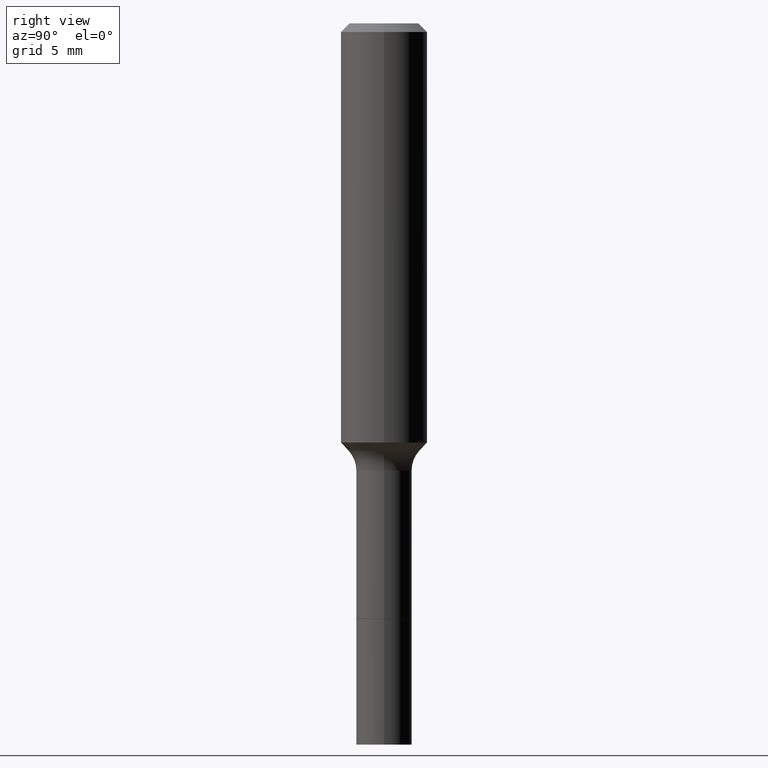
[diagram: clean part render]
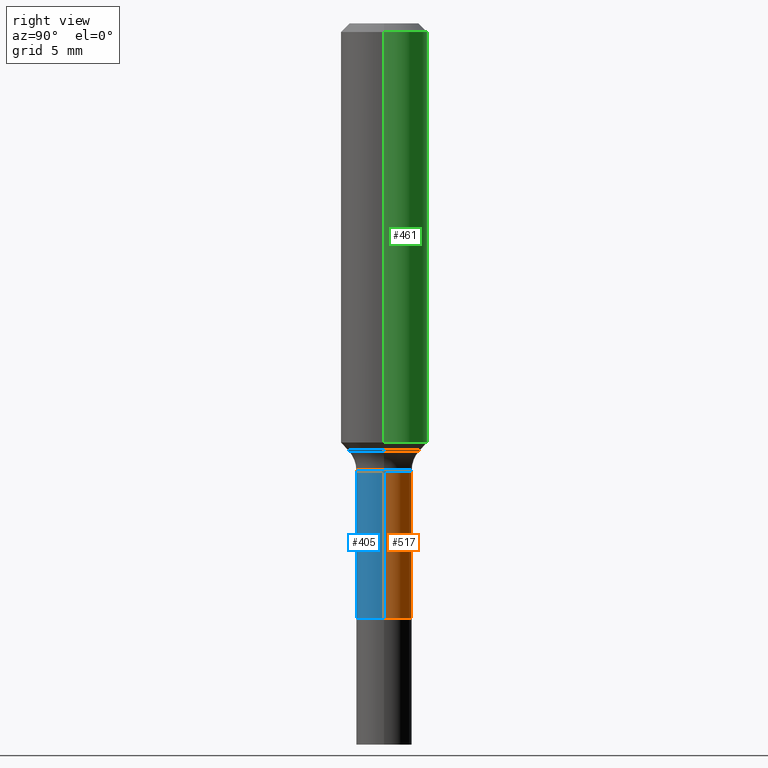
[diagram: same view with three faces highlighted in distinct colors, each labeled with its STEP entity id]
A machine part, right view with three faces highlighted in distinct colors.
Their STEP definitions:

[orange] entity #517 — the highlighted cylindrical surface (edge-blend (fillet) strip) has radius 1.9304 mm, axis along (-0, 0, 1).
#15 = DIRECTION ( 'NONE',  ( -2.445468806185136877E-29, 3.491481338843145188E-15, 1.000000000000000000 ) ) ;
#18 = DIRECTION ( 'NONE',  ( -2.445468806185136597E-29, 3.491481338843145583E-15, 1.000000000000000000 ) ) ;
#22 = CIRCLE ( 'NONE', #164, 0.07599999999999994260 ) ;
#46 = AXIS2_PLACEMENT_3D ( 'NONE', #248, #409, #200 ) ;
#49 = VECTOR ( 'NONE', #15, 39.37007874015748143 ) ;
#71 = VERTEX_POINT ( 'NONE', #502 ) ;
#92 = ORIENTED_EDGE ( 'NONE', *, *, #499, .F. ) ;
#95 = VECTOR ( 'NONE', #195, 39.37007874015748143 ) ;
#96 = LINE ( 'NONE', #456, #49 ) ;
#115 = CARTESIAN_POINT ( 'NONE',  ( 0.07599999999999999811, -6.204362339124268230E-15, -1.625000000000000000 ) ) ;
#118 = CARTESIAN_POINT ( 'NONE',  ( -0.07600000000000001199, -4.427492595661410183E-15, -1.625000000000000000 ) ) ;
#132 = CIRCLE ( 'NONE', #46, 0.07599999999999999811 ) ;
#144 = EDGE_CURVE ( 'NONE', #485, #71, #22, .T. ) ;
#164 = AXIS2_PLACEMENT_3D ( 'NONE', #209, #371, #290 ) ;
#165 = EDGE_LOOP ( 'NONE', ( #189, #286, #372, #92 ) ) ;
#179 = CARTESIAN_POINT ( 'NONE',  ( 0.07599999999999994260, -4.792058137562214256E-15, -1.220499999999999918 ) ) ;
#189 = ORIENTED_EDGE ( 'NONE', *, *, #374, .T. ) ;
#195 = DIRECTION ( 'NONE',  ( -2.445468806185136877E-29, 3.491481338843145188E-15, 1.000000000000000000 ) ) ;
#200 = DIRECTION ( 'NONE',  ( 1.000000000000000000, -6.982962677686269077E-15, 0.000000000000000000 ) ) ;
#209 = CARTESIAN_POINT ( 'NONE',  ( 2.984694677948959472E-29, -4.261352974058059028E-15, -1.220499999999999918 ) ) ;
#248 = CARTESIAN_POINT ( 'NONE',  ( 3.973886810050846970E-29, -5.673657175620112213E-15, -1.625000000000000000 ) ) ;
#262 = DIRECTION ( 'NONE',  ( 1.000000000000000000, -6.982962677686267499E-15, 4.876176775795935793E-29 ) ) ;
#286 = ORIENTED_EDGE ( 'NONE', *, *, #441, .T. ) ;
#289 = VERTEX_POINT ( 'NONE', #118 ) ;
#290 = DIRECTION ( 'NONE',  ( 1.000000000000000000, -6.982962677686261189E-15, 0.000000000000000000 ) ) ;
#339 = CARTESIAN_POINT ( 'NONE',  ( 0.000000000000000000, 0.000000000000000000, 0.000000000000000000 ) ) ;
#371 = DIRECTION ( 'NONE',  ( -2.445468806185136597E-29, 3.491481338843145583E-15, 1.000000000000000000 ) ) ;
#372 = ORIENTED_EDGE ( 'NONE', *, *, #144, .F. ) ;
#374 = EDGE_CURVE ( 'NONE', #423, #289, #132, .T. ) ;
#377 = CYLINDRICAL_SURFACE ( 'NONE', #416, 0.07599999999999997036 ) ;
#392 = CARTESIAN_POINT ( 'NONE',  ( -0.07599999999999997036, 5.400124791776759306E-16, -3.738390668593726595E-30 ) ) ;
#409 = DIRECTION ( 'NONE',  ( -2.445468806185136597E-29, 3.491481338843145583E-15, 1.000000000000000000 ) ) ;
#416 = AXIS2_PLACEMENT_3D ( 'NONE', #339, #18, #262 ) ;
#420 = FACE_OUTER_BOUND ( 'NONE', #165, .T. ) ;
#423 = VERTEX_POINT ( 'NONE', #115 ) ;
#437 = LINE ( 'NONE', #392, #95 ) ;
#441 = EDGE_CURVE ( 'NONE', #289, #71, #437, .T. ) ;
#456 = CARTESIAN_POINT ( 'NONE',  ( 0.07599999999999997036, -5.307051635041561162E-16, 3.705894349604909549E-30 ) ) ;
#485 = VERTEX_POINT ( 'NONE', #179 ) ;
#499 = EDGE_CURVE ( 'NONE', #423, #485, #96, .T. ) ;
#502 = CARTESIAN_POINT ( 'NONE',  ( -0.07599999999999994260, -4.427492595661410183E-15, -1.220499999999999918 ) ) ;
#517 = ADVANCED_FACE ( 'NONE', ( #420 ), #377, .T. ) ;

[blue] entity #405 — the highlighted cylindrical surface (edge-blend (fillet) strip) has radius 1.9304 mm, axis along (-0, 0, 1).
#15 = DIRECTION ( 'NONE',  ( -2.445468806185136877E-29, 3.491481338843145188E-15, 1.000000000000000000 ) ) ;
#49 = VECTOR ( 'NONE', #15, 39.37007874015748143 ) ;
#71 = VERTEX_POINT ( 'NONE', #502 ) ;
#95 = VECTOR ( 'NONE', #195, 39.37007874015748143 ) ;
#96 = LINE ( 'NONE', #456, #49 ) ;
#108 = EDGE_CURVE ( 'NONE', #71, #485, #184, .T. ) ;
#115 = CARTESIAN_POINT ( 'NONE',  ( 0.07599999999999999811, -6.204362339124268230E-15, -1.625000000000000000 ) ) ;
#118 = CARTESIAN_POINT ( 'NONE',  ( -0.07600000000000001199, -4.427492595661410183E-15, -1.625000000000000000 ) ) ;
#128 = DIRECTION ( 'NONE',  ( -2.445468806185136597E-29, 3.491481338843145583E-15, 1.000000000000000000 ) ) ;
#179 = CARTESIAN_POINT ( 'NONE',  ( 0.07599999999999994260, -4.792058137562214256E-15, -1.220499999999999918 ) ) ;
#184 = CIRCLE ( 'NONE', #475, 0.07599999999999994260 ) ;
#195 = DIRECTION ( 'NONE',  ( -2.445468806185136877E-29, 3.491481338843145188E-15, 1.000000000000000000 ) ) ;
#203 = CARTESIAN_POINT ( 'NONE',  ( 3.973886810050846970E-29, -5.673657175620112213E-15, -1.625000000000000000 ) ) ;
#249 = ORIENTED_EDGE ( 'NONE', *, *, #499, .T. ) ;
#252 = EDGE_CURVE ( 'NONE', #289, #423, #492, .T. ) ;
#261 = CARTESIAN_POINT ( 'NONE',  ( 2.984694677948959472E-29, -4.261352974058059028E-15, -1.220499999999999918 ) ) ;
#289 = VERTEX_POINT ( 'NONE', #118 ) ;
#311 = EDGE_LOOP ( 'NONE', ( #375, #473, #249, #421 ) ) ;
#319 = DIRECTION ( 'NONE',  ( -2.445468806185136597E-29, 3.491481338843145583E-15, 1.000000000000000000 ) ) ;
#354 = DIRECTION ( 'NONE',  ( 1.000000000000000000, -6.982962677686269077E-15, 0.000000000000000000 ) ) ;
#366 = AXIS2_PLACEMENT_3D ( 'NONE', #433, #319, #489 ) ;
#375 = ORIENTED_EDGE ( 'NONE', *, *, #441, .F. ) ;
#392 = CARTESIAN_POINT ( 'NONE',  ( -0.07599999999999997036, 5.400124791776759306E-16, -3.738390668593726595E-30 ) ) ;
#405 = ADVANCED_FACE ( 'NONE', ( #511 ), #469, .T. ) ;
#421 = ORIENTED_EDGE ( 'NONE', *, *, #108, .F. ) ;
#423 = VERTEX_POINT ( 'NONE', #115 ) ;
#426 = DIRECTION ( 'NONE',  ( 1.000000000000000000, -6.982962677686261189E-15, 0.000000000000000000 ) ) ;
#433 = CARTESIAN_POINT ( 'NONE',  ( 0.000000000000000000, 0.000000000000000000, 0.000000000000000000 ) ) ;
#437 = LINE ( 'NONE', #392, #95 ) ;
#441 = EDGE_CURVE ( 'NONE', #289, #71, #437, .T. ) ;
#456 = CARTESIAN_POINT ( 'NONE',  ( 0.07599999999999997036, -5.307051635041561162E-16, 3.705894349604909549E-30 ) ) ;
#469 = CYLINDRICAL_SURFACE ( 'NONE', #366, 0.07599999999999997036 ) ;
#473 = ORIENTED_EDGE ( 'NONE', *, *, #252, .T. ) ;
#475 = AXIS2_PLACEMENT_3D ( 'NONE', #261, #497, #426 ) ;
#485 = VERTEX_POINT ( 'NONE', #179 ) ;
#486 = AXIS2_PLACEMENT_3D ( 'NONE', #203, #128, #354 ) ;
#489 = DIRECTION ( 'NONE',  ( 1.000000000000000000, -6.982962677686267499E-15, 4.876176775795935793E-29 ) ) ;
#492 = CIRCLE ( 'NONE', #486, 0.07599999999999999811 ) ;
#497 = DIRECTION ( 'NONE',  ( -2.445468806185136597E-29, 3.491481338843145583E-15, 1.000000000000000000 ) ) ;
#499 = EDGE_CURVE ( 'NONE', #423, #485, #96, .T. ) ;
#502 = CARTESIAN_POINT ( 'NONE',  ( -0.07599999999999994260, -4.427492595661410183E-15, -1.220499999999999918 ) ) ;
#511 = FACE_OUTER_BOUND ( 'NONE', #311, .T. ) ;

[green] entity #461 — the highlighted cylindrical surface (partial cylindrical patch) has radius 2.9997 mm, axis along (-0, 0, 1).
#7 = DIRECTION ( 'NONE',  ( 1.000000000000000000, -6.982962677686266711E-15, 4.876176775795936353E-29 ) ) ;
#12 = EDGE_CURVE ( 'NONE', #181, #183, #143, .T. ) ;
#41 = EDGE_CURVE ( 'NONE', #161, #43, #424, .T. ) ;
#43 = VERTEX_POINT ( 'NONE', #389 ) ;
#105 = CARTESIAN_POINT ( 'NONE',  ( 0.1181000000000000660, -8.246878922347485584E-16, 5.758764772215003944E-30 ) ) ;
#106 = DIRECTION ( 'NONE',  ( 1.000000000000000000, -6.982962677686266711E-15, 0.000000000000000000 ) ) ;
#123 = ORIENTED_EDGE ( 'NONE', *, *, #41, .T. ) ;
#129 = EDGE_CURVE ( 'NONE', #183, #43, #332, .T. ) ;
#131 = DIRECTION ( 'NONE',  ( 1.000000000000000000, -6.982962677686265133E-15, 0.000000000000000000 ) ) ;
#140 = DIRECTION ( 'NONE',  ( -2.445468806185136877E-29, 3.491481338843145188E-15, 1.000000000000000000 ) ) ;
#143 = LINE ( 'NONE', #105, #453 ) ;
#146 = CARTESIAN_POINT ( 'NONE',  ( 5.776197320209328408E-31, -8.246878922347560526E-17, -0.02362000000000014435 ) ) ;
#161 = VERTEX_POINT ( 'NONE', #198 ) ;
#170 = CARTESIAN_POINT ( 'NONE',  ( 0.1180999999999999966, -9.071566814582237199E-16, -0.02362000000000014435 ) ) ;
#171 = ORIENTED_EDGE ( 'NONE', *, *, #129, .F. ) ;
#181 = VERTEX_POINT ( 'NONE', #357 ) ;
#183 = VERTEX_POINT ( 'NONE', #170 ) ;
#191 = ORIENTED_EDGE ( 'NONE', *, *, #12, .F. ) ;
#198 = CARTESIAN_POINT ( 'NONE',  ( -0.1181000000000001354, -3.154546577353446386E-15, -1.143840439258765329 ) ) ;
#207 = FACE_OUTER_BOUND ( 'NONE', #470, .T. ) ;
#216 = EDGE_CURVE ( 'NONE', #181, #161, #373, .T. ) ;
#236 = ORIENTED_EDGE ( 'NONE', *, *, #216, .T. ) ;
#253 = CYLINDRICAL_SURFACE ( 'NONE', #472, 0.1181000000000000660 ) ;
#267 = DIRECTION ( 'NONE',  ( -2.445468806185136877E-29, 3.491481338843145188E-15, 1.000000000000000000 ) ) ;
#295 = DIRECTION ( 'NONE',  ( -2.445468806185136597E-29, 3.491481338843145583E-15, 1.000000000000000000 ) ) ;
#298 = AXIS2_PLACEMENT_3D ( 'NONE', #408, #440, #131 ) ;
#299 = VECTOR ( 'NONE', #140, 39.37007874015748143 ) ;
#305 = CARTESIAN_POINT ( 'NONE',  ( -0.1181000000000000660, 8.391509709326787887E-16, -5.809262341591047287E-30 ) ) ;
#332 = CIRCLE ( 'NONE', #385, 0.1180999999999999966 ) ;
#357 = CARTESIAN_POINT ( 'NONE',  ( 0.1181000000000001354, -4.818385440520874423E-15, -1.143840439258765329 ) ) ;
#363 = CARTESIAN_POINT ( 'NONE',  ( 0.000000000000000000, 0.000000000000000000, 0.000000000000000000 ) ) ;
#373 = CIRCLE ( 'NONE', #298, 0.1181000000000001354 ) ;
#385 = AXIS2_PLACEMENT_3D ( 'NONE', #146, #462, #106 ) ;
#389 = CARTESIAN_POINT ( 'NONE',  ( -0.1180999999999999966, -1.198932197822121231E-15, -0.02362000000000014435 ) ) ;
#408 = CARTESIAN_POINT ( 'NONE',  ( 2.797226113460414960E-29, -3.993697548286125371E-15, -1.143840439258765329 ) ) ;
#424 = LINE ( 'NONE', #305, #299 ) ;
#440 = DIRECTION ( 'NONE',  ( -2.445468806185136597E-29, 3.491481338843145583E-15, 1.000000000000000000 ) ) ;
#453 = VECTOR ( 'NONE', #267, 39.37007874015748143 ) ;
#461 = ADVANCED_FACE ( 'NONE', ( #207 ), #253, .T. ) ;
#462 = DIRECTION ( 'NONE',  ( -2.445468806185136597E-29, 3.491481338843145583E-15, 1.000000000000000000 ) ) ;
#470 = EDGE_LOOP ( 'NONE', ( #236, #123, #171, #191 ) ) ;
#472 = AXIS2_PLACEMENT_3D ( 'NONE', #363, #295, #7 ) ;